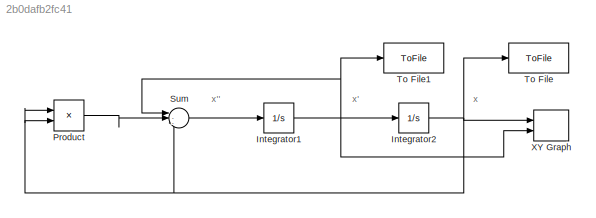
MODEL slx_2b0dafb2fc41
KIND model
CONFIG AbsTol = auto
CONFIG EnableMultiTasking = on
CONFIG FixedStep = auto
CONFIG MaxStep = auto
CONFIG MinStep = auto
CONFIG RelTol = 1e-3
CONFIG SampleTimeConstraint = Unconstrained
CONFIG SolverName = ode45
CONFIG StartTime = 0.0
CONFIG StopTime = 3
WORKSPACE source: mxarray member
WORKSPACE X0 = 0
BLOCK [Integrator] Integrator1
  InitialCondition = 1.5
  Ports = [1, 1]
BLOCK [Integrator] Integrator2
  InitialCondition = -1
  Ports = [1, 1]
BLOCK [Product] Product
  Ports = [2, 1]
BLOCK [Sum] Sum
  Inputs = |--+
  Ports = [3, 1]
BLOCK [ToFile] To File
  Filename = x.mat
  MatrixName = x
  Ports = [1]
  SampleTime = 0.001
BLOCK [ToFile] To File1
  Filename = xdot.mat
  MatrixName = xdot
  Ports = [1]
  SampleTime = 0.001
BLOCK [Record] XY Graph
  CompatibilityTag = XY
  FileSettingsInternal = {"entries":[{"content":{"excelSettings":{"content":{},"type":"Streamout.ExcelSettings"}},"type":"Streamout.FileSettingStorage","uuid":"c2565e3c-df81-4bf1-9553-0a324edf4095"}],"packageUris":["http://schema.mathworks.com/mf0/streamout_blocks/R2020a"],"version":"1.0"}
  Layout = [1 1]
  Ports = [2]
  SignalsInternal = {"entries":[{"content":{"signals":[{"content":{"blockPath":["fig2_4_simulink/XY Graph"],"channel":[],"dimensions":[1],"domain":"fig2_4_simulink/XY Graph","lineColor":"#a2142f","plots":[1],"port":1,"sid":[""],"signalID":974,"signalName":"Integrator2"},"type":"RecordBlkView.Signal","uuid":"0da2719f-7509-43da-93cb-1d4f29ef6b94"},{"content":{"blockPath":["fig2_4_simulink/XY Graph"],"channel":[],"dimen...<+397ch>
  VisualizationBindings = {"xyplotplugin":{"info":[{"series":[{"bindingParametersList":[{"parameter":"X-Axis","signalID":974,"signalName":"Integrator2"},{"parameter":"Y-Axis","signalID":978,"signalName":"Integrator1"}],"seriesID":8348}],"subplotID":1}]}}
ANNOTATION (root): x
ANNOTATION (root): x'
ANNOTATION (root): x''
NET Integrator1:1 -> Integrator2:1, Sum:1, To File1:1, XY Graph:2
NET Integrator2:1 -> Product:1, Product:2, Sum:3, To File:1, XY Graph:1
LINE Product:1 -> Sum:2
LINE Sum:1 -> Integrator1:1
note: NET lines group one-source signal fan-out (src -> all destinations, sorted); 1:1 wires keep LINE
